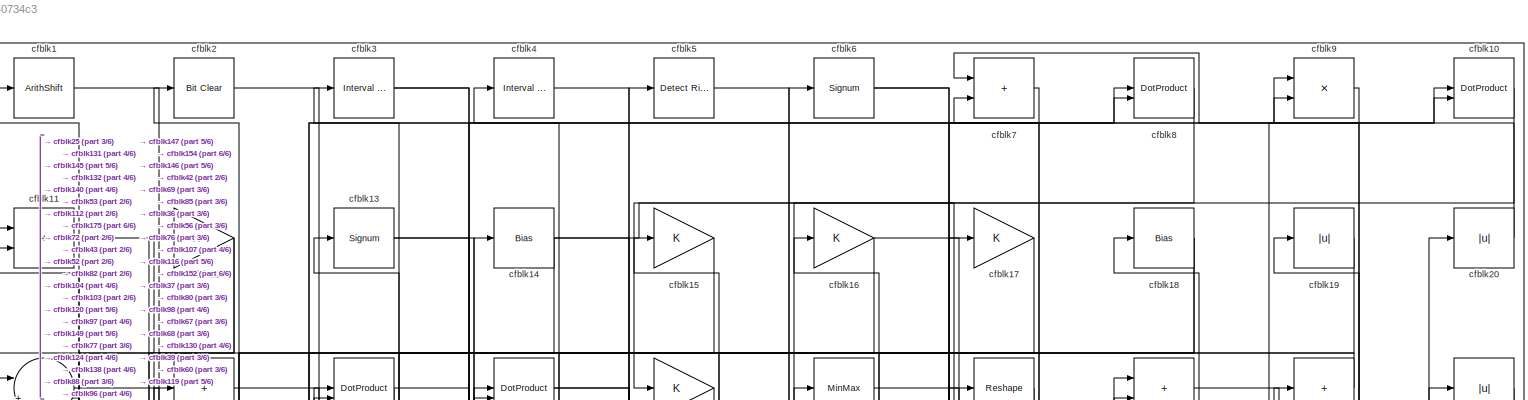
[diagram: root canvas - part 1/6, full width, top band]
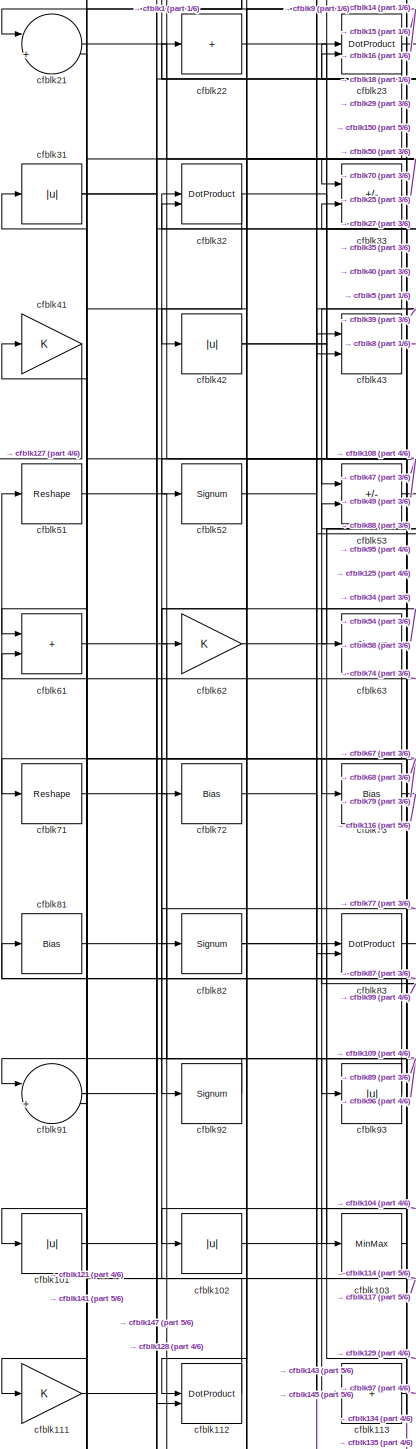
[diagram: root canvas - part 2/6, middle left region]
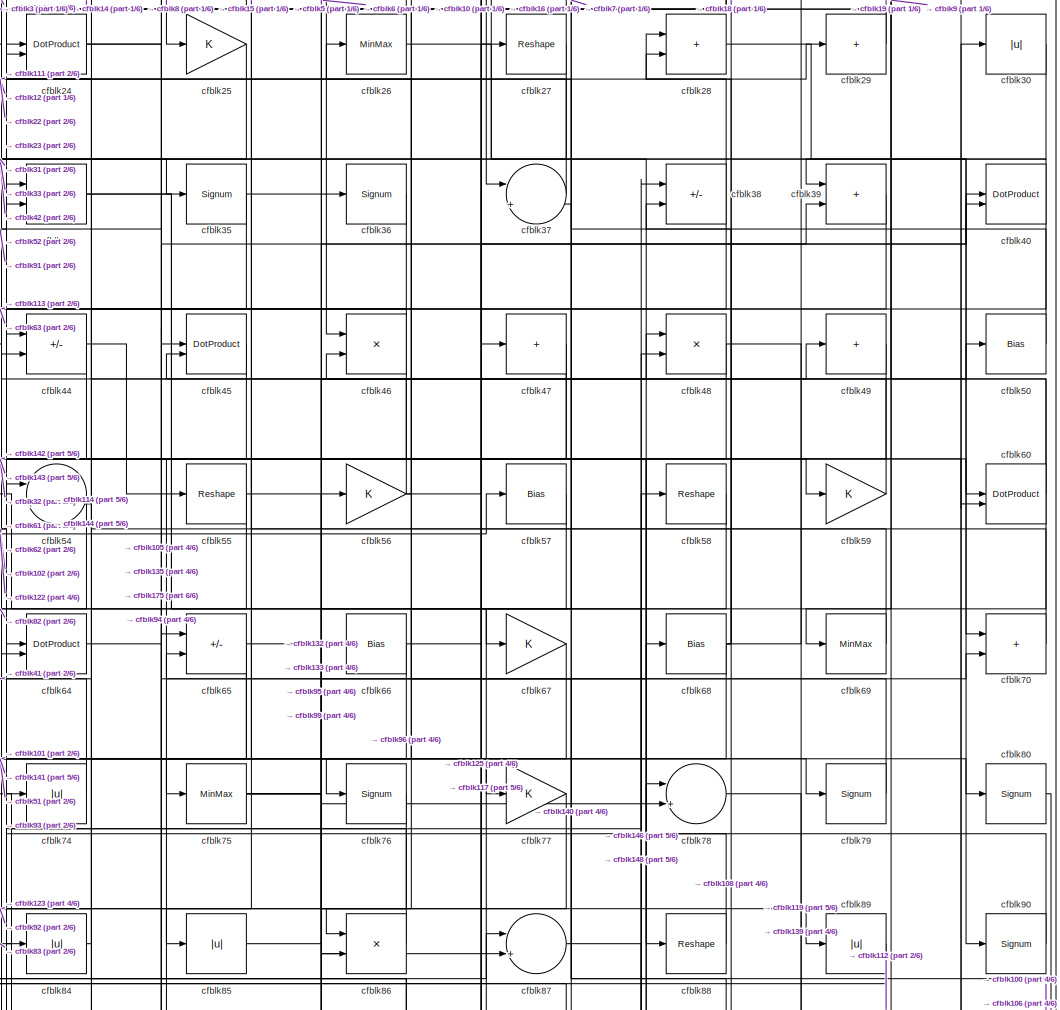
[diagram: root canvas - part 3/6, top center region]
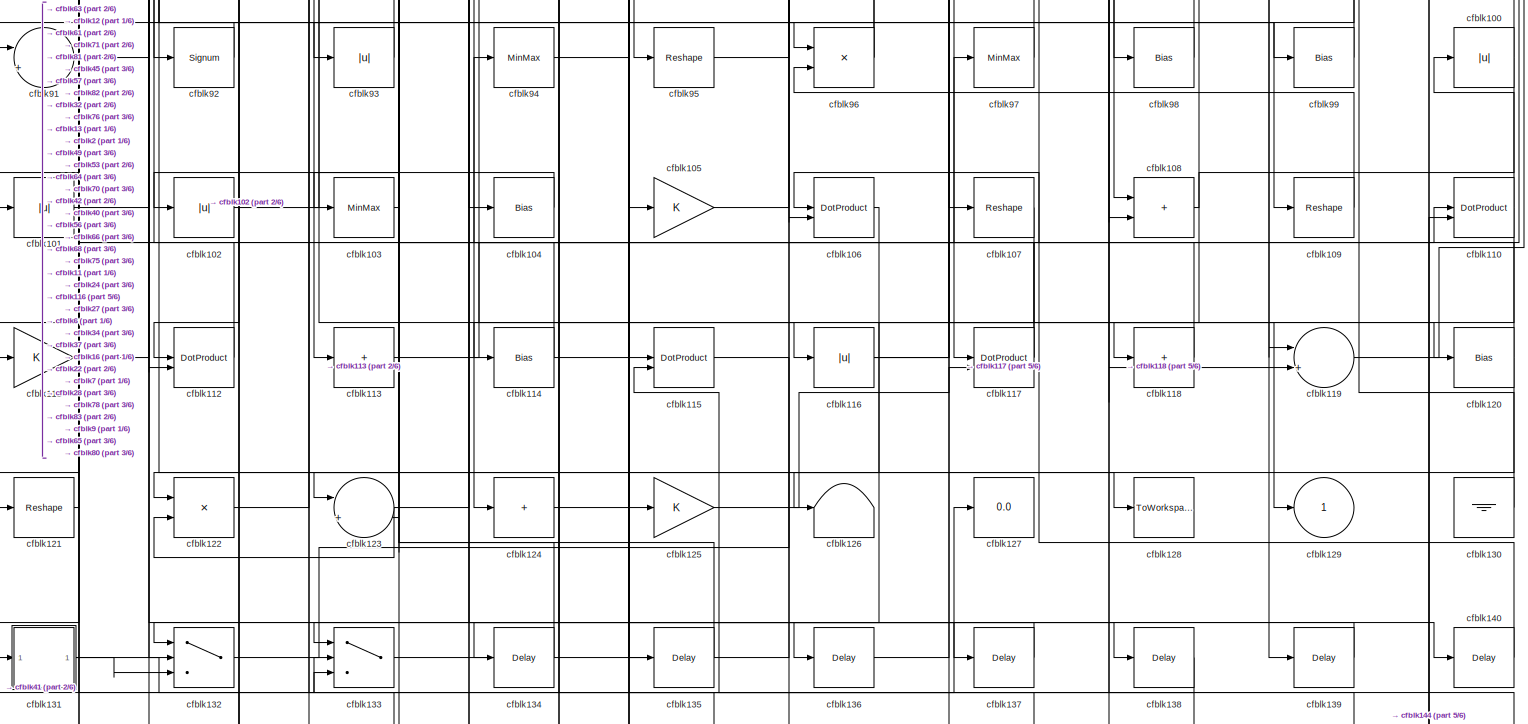
[diagram: root canvas - part 4/6, full width, middle band]
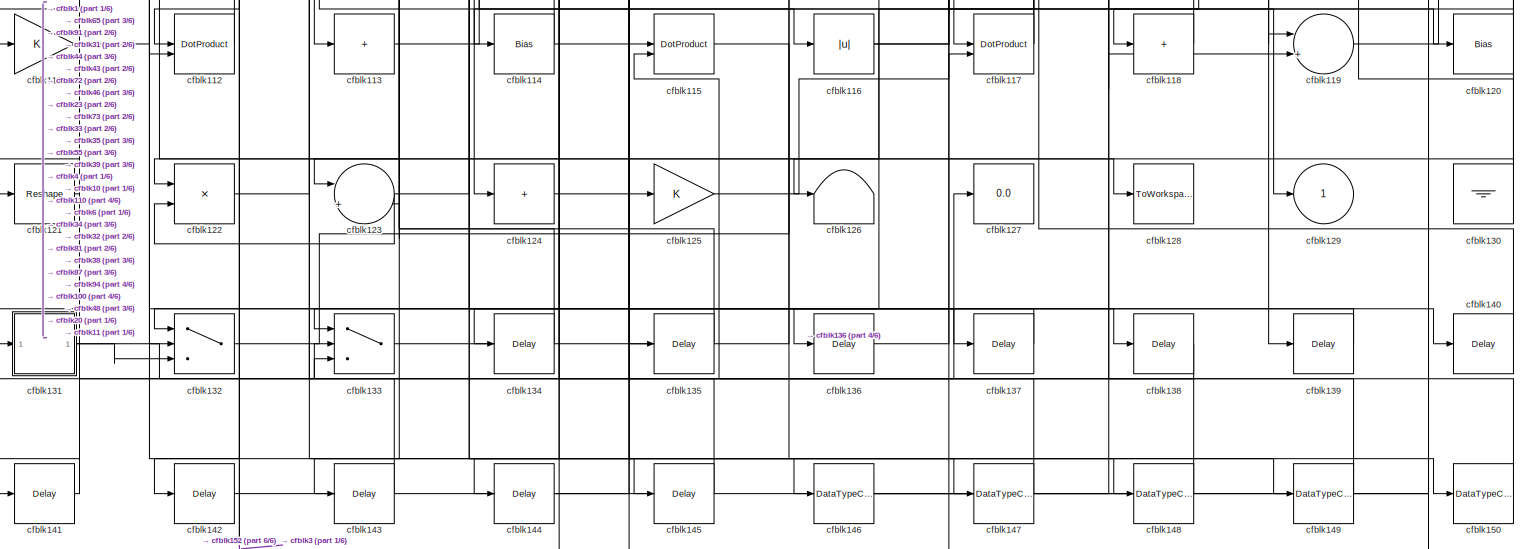
[diagram: root canvas - part 5/6, full width, bottom band]
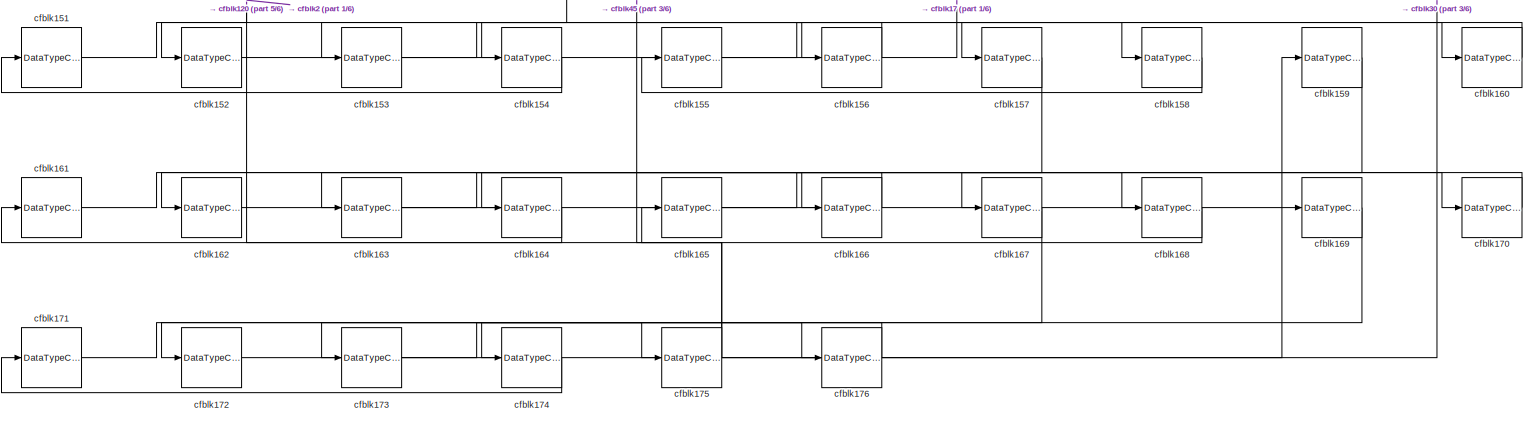
[diagram: root canvas - part 6/6, full width, bottom band]
MODEL slx_c6e8740734c3
KIND model
CONFIG AbsTol = auto
CONFIG EnableMultiTasking = off
CONFIG FixedStep = auto
CONFIG MaxStep = auto
CONFIG MinStep = auto
CONFIG RelTol = 1e-3
CONFIG SampleTimeConstraint = Unconstrained
CONFIG SolverName = VariableStepAuto
CONFIG StartTime = 0.0
CONFIG StopTime = 10.0
BLOCK [ArithShift] cfblk1
  BitShiftNumber = 8
  InputPortMap = u0
BLOCK [DotProduct] cfblk10
  OutDataTypeStr = Inherit: Inherit via internal rule
BLOCK [Abs] cfblk100
  SaturateOnIntegerOverflow = off
BLOCK [Abs] cfblk101
  SaturateOnIntegerOverflow = off
BLOCK [Abs] cfblk102
  SaturateOnIntegerOverflow = off
BLOCK [MinMax] cfblk103
BLOCK [Bias] cfblk104
  Bias = 0.0
  SaturateOnIntegerOverflow = off
BLOCK [Gain] cfblk105
BLOCK [DotProduct] cfblk106
  OutDataTypeStr = Inherit: Inherit via internal rule
BLOCK [Reshape] cfblk107
BLOCK [Sum] cfblk108
  IconShape = rectangular
BLOCK [Reshape] cfblk109
BLOCK [Sum] cfblk11
  IconShape = rectangular
BLOCK [DotProduct] cfblk110
  OutDataTypeStr = Inherit: Inherit via internal rule
BLOCK [Gain] cfblk111
BLOCK [DotProduct] cfblk112
  OutDataTypeStr = Inherit: Inherit via internal rule
BLOCK [Sum] cfblk113
  IconShape = rectangular
  Inputs = +
BLOCK [Bias] cfblk114
  Bias = 0.0
  SaturateOnIntegerOverflow = off
BLOCK [DotProduct] cfblk115
  OutDataTypeStr = Inherit: Inherit via internal rule
BLOCK [Abs] cfblk116
  SaturateOnIntegerOverflow = off
BLOCK [DotProduct] cfblk117
  OutDataTypeStr = Inherit: Inherit via internal rule
BLOCK [Sum] cfblk118
  IconShape = rectangular
  Inputs = +
BLOCK [Sum] cfblk119
  Inputs = |++
BLOCK [Gain] cfblk12
BLOCK [Bias] cfblk120
  Bias = 0.0
  SaturateOnIntegerOverflow = off
BLOCK [Reshape] cfblk121
BLOCK [Product] cfblk122
  Inputs = */
  RndMeth = Zero
  SaturateOnIntegerOverflow = on
BLOCK [Sum] cfblk123
  Inputs = |++
BLOCK [Sum] cfblk124
  IconShape = rectangular
  Inputs = +
BLOCK [Gain] cfblk125
BLOCK [Terminator] cfblk126
BLOCK [Display] cfblk127
  Decimation = 1
BLOCK [ToWorkspace] cfblk128
  MaxDataPoints = inf
  SampleTime = -1
  SaveFormat = Timeseries
  VariableName = simout
BLOCK [Outport] cfblk129
  VectorParamsAs1DForOutWhenUnconnected = off
BLOCK [Signum] cfblk13
BLOCK [Ground] cfblk130
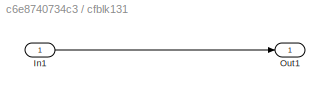
BLOCK [SubSystem] cfblk131
  LibrarySourceBlock = hdlsllib/Ports &\nSubsystems/Subsystem
BLOCK [Inport] cfblk131/In1
BLOCK [Outport] cfblk131/Out1
BLOCK [Switch] cfblk132
  InputSameDT = off
  SaturateOnIntegerOverflow = off
BLOCK [Switch] cfblk133
  InputSameDT = off
  SaturateOnIntegerOverflow = off
BLOCK [Delay] cfblk134
  InputPortMap = u0
  SampleTime = 1
BLOCK [Delay] cfblk135
  InputPortMap = u0
  SampleTime = 1
BLOCK [Delay] cfblk136
  InputPortMap = u0
  SampleTime = 1
BLOCK [Delay] cfblk137
  InputPortMap = u0
  SampleTime = 1
BLOCK [Delay] cfblk138
  InputPortMap = u0
  SampleTime = 1
BLOCK [Delay] cfblk139
  InputPortMap = u0
  SampleTime = 1
BLOCK [Bias] cfblk14
  Bias = 0.0
  SaturateOnIntegerOverflow = off
BLOCK [Delay] cfblk140
  InputPortMap = u0
  SampleTime = 1
BLOCK [Delay] cfblk141
  InputPortMap = u0
  SampleTime = 1
BLOCK [Delay] cfblk142
  InputPortMap = u0
  SampleTime = 1
BLOCK [Delay] cfblk143
  InputPortMap = u0
  SampleTime = 1
BLOCK [Delay] cfblk144
  InputPortMap = u0
  SampleTime = 1
BLOCK [Delay] cfblk145
  InputPortMap = u0
  SampleTime = 1
BLOCK [DataTypeConversion] cfblk146
  RndMeth = Floor
  SaturateOnIntegerOverflow = off
BLOCK [DataTypeConversion] cfblk147
  OutDataTypeStr = uint8
  RndMeth = Floor
  SaturateOnIntegerOverflow = off
BLOCK [DataTypeConversion] cfblk148
  OutDataTypeStr = uint8
  RndMeth = Floor
  SaturateOnIntegerOverflow = off
BLOCK [DataTypeConversion] cfblk149
  OutDataTypeStr = uint8
  RndMeth = Floor
  SaturateOnIntegerOverflow = off
BLOCK [Gain] cfblk15
BLOCK [DataTypeConversion] cfblk150
  OutDataTypeStr = uint8
  RndMeth = Floor
  SaturateOnIntegerOverflow = off
BLOCK [DataTypeConversion] cfblk151
  RndMeth = Floor
  SaturateOnIntegerOverflow = off
BLOCK [DataTypeConversion] cfblk152
  OutDataTypeStr = uint8
  RndMeth = Floor
  SaturateOnIntegerOverflow = off
BLOCK [DataTypeConversion] cfblk153
  RndMeth = Floor
  SaturateOnIntegerOverflow = off
BLOCK [DataTypeConversion] cfblk154
  OutDataTypeStr = uint8
  RndMeth = Floor
  SaturateOnIntegerOverflow = off
BLOCK [DataTypeConversion] cfblk155
  RndMeth = Floor
  SaturateOnIntegerOverflow = off
BLOCK [DataTypeConversion] cfblk156
  OutDataTypeStr = uint8
  RndMeth = Floor
  SaturateOnIntegerOverflow = off
BLOCK [DataTypeConversion] cfblk157
  RndMeth = Floor
  SaturateOnIntegerOverflow = off
BLOCK [DataTypeConversion] cfblk158
  OutDataTypeStr = uint8
  RndMeth = Floor
  SaturateOnIntegerOverflow = off
BLOCK [DataTypeConversion] cfblk159
  RndMeth = Floor
  SaturateOnIntegerOverflow = off
BLOCK [Gain] cfblk16
BLOCK [DataTypeConversion] cfblk160
  OutDataTypeStr = uint8
  RndMeth = Floor
  SaturateOnIntegerOverflow = off
BLOCK [DataTypeConversion] cfblk161
  RndMeth = Floor
  SaturateOnIntegerOverflow = off
BLOCK [DataTypeConversion] cfblk162
  OutDataTypeStr = uint8
  RndMeth = Floor
  SaturateOnIntegerOverflow = off
BLOCK [DataTypeConversion] cfblk163
  RndMeth = Floor
  SaturateOnIntegerOverflow = off
BLOCK [DataTypeConversion] cfblk164
  OutDataTypeStr = uint8
  RndMeth = Floor
  SaturateOnIntegerOverflow = off
BLOCK [DataTypeConversion] cfblk165
  RndMeth = Floor
  SaturateOnIntegerOverflow = off
BLOCK [DataTypeConversion] cfblk166
  OutDataTypeStr = uint8
  RndMeth = Floor
  SaturateOnIntegerOverflow = off
BLOCK [DataTypeConversion] cfblk167
  RndMeth = Floor
  SaturateOnIntegerOverflow = off
BLOCK [DataTypeConversion] cfblk168
  OutDataTypeStr = uint8
  RndMeth = Floor
  SaturateOnIntegerOverflow = off
BLOCK [DataTypeConversion] cfblk169
  RndMeth = Floor
  SaturateOnIntegerOverflow = off
BLOCK [Gain] cfblk17
BLOCK [DataTypeConversion] cfblk170
  OutDataTypeStr = uint8
  RndMeth = Floor
  SaturateOnIntegerOverflow = off
BLOCK [DataTypeConversion] cfblk171
  RndMeth = Floor
  SaturateOnIntegerOverflow = off
BLOCK [DataTypeConversion] cfblk172
  OutDataTypeStr = uint8
  RndMeth = Floor
  SaturateOnIntegerOverflow = off
BLOCK [DataTypeConversion] cfblk173
  RndMeth = Floor
  SaturateOnIntegerOverflow = off
BLOCK [DataTypeConversion] cfblk174
  OutDataTypeStr = uint8
  RndMeth = Floor
  SaturateOnIntegerOverflow = off
BLOCK [DataTypeConversion] cfblk175
  RndMeth = Floor
  SaturateOnIntegerOverflow = off
BLOCK [DataTypeConversion] cfblk176
  OutDataTypeStr = uint8
  RndMeth = Floor
  SaturateOnIntegerOverflow = off
BLOCK [Bias] cfblk18
  Bias = 0.0
  SaturateOnIntegerOverflow = off
BLOCK [Abs] cfblk19
  SaturateOnIntegerOverflow = off
BLOCK [Reference] cfblk2  REF=simulink/Logic and Bit
Operations/Bit Clear
  LibrarySourceBlock = hdlsllib/Logic and Bit\nOperations/Bit Clear
  SourceBlock = simulink/Logic and Bit\nOperations/Bit Clear
  SourceType = Bit Clear
BLOCK [Abs] cfblk20
  SaturateOnIntegerOverflow = off
BLOCK [Sum] cfblk21
  Inputs = |++
BLOCK [Sum] cfblk22
  IconShape = rectangular
  Inputs = +
BLOCK [DotProduct] cfblk23
  OutDataTypeStr = Inherit: Inherit via internal rule
BLOCK [DotProduct] cfblk24
  OutDataTypeStr = Inherit: Inherit via internal rule
BLOCK [Gain] cfblk25
BLOCK [MinMax] cfblk26
BLOCK [Reshape] cfblk27
BLOCK [Sum] cfblk28
  IconShape = rectangular
BLOCK [Sum] cfblk29
  IconShape = rectangular
  Inputs = +
BLOCK [Reference] cfblk3  REF=hdlsllib/Logic and Bit
Operations/Interval Test
  SourceBlock = hdlsllib/Logic and Bit\nOperations/Interval Test
  SourceType = Interval Test
BLOCK [Abs] cfblk30
  SaturateOnIntegerOverflow = off
BLOCK [Abs] cfblk31
  SaturateOnIntegerOverflow = off
BLOCK [DotProduct] cfblk32
  OutDataTypeStr = Inherit: Inherit via internal rule
BLOCK [Sum] cfblk33
  IconShape = rectangular
  Inputs = +-
BLOCK [Product] cfblk34
  Inputs = */
  RndMeth = Zero
  SaturateOnIntegerOverflow = on
BLOCK [Signum] cfblk35
BLOCK [Signum] cfblk36
BLOCK [Sum] cfblk37
  Inputs = |++
BLOCK [Sum] cfblk38
  IconShape = rectangular
  Inputs = +-
BLOCK [Sum] cfblk39
  IconShape = rectangular
BLOCK [Reference] cfblk4  REF=hdlsllib/Logic and Bit
Operations/Interval Test
  SourceBlock = hdlsllib/Logic and Bit\nOperations/Interval Test
  SourceType = Interval Test
BLOCK [DotProduct] cfblk40
  OutDataTypeStr = Inherit: Inherit via internal rule
BLOCK [Gain] cfblk41
BLOCK [Abs] cfblk42
  SaturateOnIntegerOverflow = off
BLOCK [Product] cfblk43
  Inputs = */
  RndMeth = Zero
  SaturateOnIntegerOverflow = on
BLOCK [Sum] cfblk44
  IconShape = rectangular
  Inputs = +-
BLOCK [DotProduct] cfblk45
  OutDataTypeStr = Inherit: Inherit via internal rule
BLOCK [Product] cfblk46
  Inputs = */
  RndMeth = Zero
  SaturateOnIntegerOverflow = on
BLOCK [Sum] cfblk47
  IconShape = rectangular
  Inputs = +
BLOCK [Product] cfblk48
  Inputs = */
  RndMeth = Zero
  SaturateOnIntegerOverflow = on
BLOCK [Sum] cfblk49
  IconShape = rectangular
  Inputs = +
BLOCK [Reference] cfblk5  REF=hdlsllib/Logic and Bit
Operations/Detect Rise
Nonnegative
  SourceBlock = hdlsllib/Logic and Bit\nOperations/Detect Rise\nNonnegative
  SourceType = Detect Rise Nonnegative
BLOCK [Bias] cfblk50
  Bias = 0.0
  SaturateOnIntegerOverflow = off
BLOCK [Reshape] cfblk51
BLOCK [Signum] cfblk52
BLOCK [Sum] cfblk53
  IconShape = rectangular
  Inputs = +-
BLOCK [Sum] cfblk54
  Inputs = |++
BLOCK [Reshape] cfblk55
BLOCK [Gain] cfblk56
BLOCK [Bias] cfblk57
  Bias = 0.0
  SaturateOnIntegerOverflow = off
BLOCK [Reshape] cfblk58
BLOCK [Gain] cfblk59
BLOCK [Signum] cfblk6
BLOCK [DotProduct] cfblk60
  OutDataTypeStr = Inherit: Inherit via internal rule
BLOCK [Sum] cfblk61
  IconShape = rectangular
BLOCK [Gain] cfblk62
BLOCK [Signum] cfblk63
BLOCK [DotProduct] cfblk64
  OutDataTypeStr = Inherit: Inherit via internal rule
BLOCK [Sum] cfblk65
  IconShape = rectangular
  Inputs = +-
BLOCK [Bias] cfblk66
  Bias = 0.0
  SaturateOnIntegerOverflow = off
BLOCK [Gain] cfblk67
BLOCK [Bias] cfblk68
  Bias = 0.0
  SaturateOnIntegerOverflow = off
BLOCK [MinMax] cfblk69
BLOCK [Sum] cfblk7
  IconShape = rectangular
BLOCK [Sum] cfblk70
  IconShape = rectangular
BLOCK [Reshape] cfblk71
BLOCK [Bias] cfblk72
  Bias = 0.0
  SaturateOnIntegerOverflow = off
BLOCK [Bias] cfblk73
  Bias = 0.0
  SaturateOnIntegerOverflow = off
BLOCK [Abs] cfblk74
  SaturateOnIntegerOverflow = off
BLOCK [MinMax] cfblk75
BLOCK [Signum] cfblk76
BLOCK [Gain] cfblk77
BLOCK [Sum] cfblk78
  Inputs = |++
BLOCK [Signum] cfblk79
BLOCK [DotProduct] cfblk8
  OutDataTypeStr = Inherit: Inherit via internal rule
BLOCK [Signum] cfblk80
BLOCK [Bias] cfblk81
  Bias = 0.0
  SaturateOnIntegerOverflow = off
BLOCK [Signum] cfblk82
BLOCK [DotProduct] cfblk83
  OutDataTypeStr = Inherit: Inherit via internal rule
BLOCK [Abs] cfblk84
  SaturateOnIntegerOverflow = off
BLOCK [Abs] cfblk85
  SaturateOnIntegerOverflow = off
BLOCK [Product] cfblk86
  Inputs = */
  RndMeth = Zero
  SaturateOnIntegerOverflow = on
BLOCK [Sum] cfblk87
  Inputs = |++
BLOCK [Reshape] cfblk88
BLOCK [Abs] cfblk89
  SaturateOnIntegerOverflow = off
BLOCK [Product] cfblk9
  Inputs = */
  RndMeth = Zero
  SaturateOnIntegerOverflow = on
BLOCK [Signum] cfblk90
BLOCK [Sum] cfblk91
  Inputs = |++
BLOCK [Signum] cfblk92
BLOCK [Abs] cfblk93
  SaturateOnIntegerOverflow = off
BLOCK [MinMax] cfblk94
BLOCK [Reshape] cfblk95
BLOCK [Product] cfblk96
  Inputs = */
  RndMeth = Zero
  SaturateOnIntegerOverflow = on
BLOCK [MinMax] cfblk97
BLOCK [Bias] cfblk98
  Bias = 0.0
  SaturateOnIntegerOverflow = off
BLOCK [Bias] cfblk99
  Bias = 0.0
  SaturateOnIntegerOverflow = off
NET cfblk100:1 -> cfblk118:1, cfblk65:2
LINE cfblk101:1 -> cfblk87:1
LINE cfblk102:1 -> cfblk34:1
LINE cfblk103:1 -> cfblk23:2
LINE cfblk104:1 -> cfblk102:1
LINE cfblk105:1 -> cfblk40:1
LINE cfblk106:1 -> cfblk136:1
LINE cfblk107:1 -> cfblk134:1
LINE cfblk108:1 -> cfblk28:1
LINE cfblk109:1 -> cfblk96:2
LINE cfblk10:1 -> cfblk36:1
NET cfblk110:1 -> cfblk100:1, cfblk126:1
LINE cfblk111:1 -> cfblk29:1
LINE cfblk112:1 -> cfblk31:1
LINE cfblk113:1 -> cfblk97:1
NET cfblk114:1 -> cfblk33:2, cfblk39:2
LINE cfblk115:1 -> cfblk148:1
NET cfblk116:1 -> cfblk10:1, cfblk110:1
NET cfblk117:1 -> cfblk32:1, cfblk81:1
LINE cfblk118:1 -> cfblk94:1
LINE cfblk119:1 -> cfblk11:1
LINE cfblk11:1 -> cfblk140:1
NET cfblk120:1 -> cfblk152:1, cfblk3:1
LINE cfblk121:1 -> cfblk61:2
LINE cfblk122:1 -> cfblk57:1
NET cfblk123:1 -> cfblk122:2, cfblk49:1
LINE cfblk124:1 -> cfblk137:1
LINE cfblk125:1 -> cfblk27:1
NET cfblk12:1 -> cfblk131:1, cfblk132:2
LINE cfblk130:1 -> cfblk9:2
LINE cfblk131/In1:1 -> cfblk131/Out1:1
NET cfblk131:1 -> cfblk132:3, cfblk133:2
LINE cfblk132:1 -> cfblk56:1
LINE cfblk133:1 -> cfblk66:1
LINE cfblk134:1 -> cfblk53:2
LINE cfblk135:1 -> cfblk32:2
LINE cfblk136:1 -> cfblk117:2
LINE cfblk137:1 -> cfblk133:1
LINE cfblk138:1 -> cfblk133:3
LINE cfblk139:1 -> cfblk132:1
NET cfblk13:1 -> cfblk124:1, cfblk138:1
LINE cfblk140:1 -> cfblk37:2
LINE cfblk141:1 -> cfblk91:2
LINE cfblk142:1 -> cfblk65:1
LINE cfblk143:1 -> cfblk43:1
LINE cfblk144:1 -> cfblk110:2
LINE cfblk145:1 -> cfblk1:1
NET cfblk146:1 -> cfblk20:1, cfblk48:2
LINE cfblk147:1 -> cfblk4:1
LINE cfblk148:1 -> cfblk38:1
LINE cfblk149:1 -> cfblk115:1
NET cfblk14:1 -> cfblk37:1, cfblk72:1, cfblk80:1
LINE cfblk150:1 -> cfblk115:2
LINE cfblk151:1 -> cfblk156:1
LINE cfblk152:1 -> cfblk17:1
LINE cfblk153:1 -> cfblk158:1
LINE cfblk154:1 -> cfblk151:1
LINE cfblk155:1 -> cfblk160:1
LINE cfblk156:1 -> cfblk153:1
LINE cfblk157:1 -> cfblk162:1
LINE cfblk158:1 -> cfblk155:1
LINE cfblk159:1 -> cfblk164:1
LINE cfblk15:1 -> cfblk112:1
LINE cfblk160:1 -> cfblk157:1
LINE cfblk161:1 -> cfblk166:1
LINE cfblk162:1 -> cfblk159:1
LINE cfblk163:1 -> cfblk168:1
LINE cfblk164:1 -> cfblk161:1
LINE cfblk165:1 -> cfblk170:1
LINE cfblk166:1 -> cfblk163:1
LINE cfblk167:1 -> cfblk172:1
LINE cfblk168:1 -> cfblk165:1
LINE cfblk169:1 -> cfblk174:1
NET cfblk16:1 -> cfblk43:2, cfblk98:1
LINE cfblk170:1 -> cfblk167:1
LINE cfblk171:1 -> cfblk176:1
LINE cfblk172:1 -> cfblk169:1
LINE cfblk173:1 -> cfblk175:1
LINE cfblk174:1 -> cfblk171:1
NET cfblk175:1 -> cfblk2:1, cfblk30:1, cfblk45:1
LINE cfblk176:1 -> cfblk173:1
LINE cfblk17:1 -> cfblk154:1
NET cfblk18:1 -> cfblk103:1, cfblk85:1
LINE cfblk19:1 -> cfblk76:1
LINE cfblk1:1 -> cfblk53:1
LINE cfblk20:1 -> cfblk7:1
LINE cfblk21:1 -> cfblk47:1
LINE cfblk22:1 -> cfblk108:1
NET cfblk23:1 -> cfblk150:1, cfblk71:1
NET cfblk24:1 -> cfblk105:1, cfblk59:1
LINE cfblk25:1 -> cfblk52:1
LINE cfblk26:1 -> cfblk70:1
LINE cfblk27:1 -> cfblk42:1
LINE cfblk28:1 -> cfblk90:1
LINE cfblk29:1 -> cfblk21:1
LINE cfblk2:1 -> cfblk104:1
LINE cfblk30:1 -> cfblk69:1
NET cfblk31:1 -> cfblk147:1, cfblk35:1
NET cfblk32:1 -> cfblk111:1, cfblk88:1
LINE cfblk33:1 -> cfblk83:2
NET cfblk34:1 -> cfblk108:2, cfblk117:1
NET cfblk35:1 -> cfblk144:1, cfblk46:1
LINE cfblk36:1 -> cfblk54:2
LINE cfblk37:1 -> cfblk12:1
NET cfblk38:1 -> cfblk28:2, cfblk44:2
LINE cfblk39:1 -> cfblk113:1
NET cfblk3:1 -> cfblk149:1, cfblk77:1
NET cfblk40:1 -> cfblk33:1, cfblk63:1
LINE cfblk41:1 -> cfblk127:1
NET cfblk42:1 -> cfblk5:1, cfblk95:1
NET cfblk43:1 -> cfblk73:1, cfblk8:1
NET cfblk44:1 -> cfblk142:1, cfblk55:1
LINE cfblk45:1 -> cfblk122:1
NET cfblk46:1 -> cfblk143:1, cfblk44:1
NET cfblk47:1 -> cfblk61:1, cfblk75:1
NET cfblk48:1 -> cfblk119:1, cfblk86:2
LINE cfblk49:1 -> cfblk62:1
LINE cfblk4:1 -> cfblk146:1
LINE cfblk50:1 -> cfblk23:1
LINE cfblk51:1 -> cfblk79:1
LINE cfblk52:1 -> cfblk9:1
LINE cfblk53:1 -> cfblk125:1
LINE cfblk54:1 -> cfblk64:2
NET cfblk55:1 -> cfblk114:1, cfblk87:2
NET cfblk56:1 -> cfblk16:1, cfblk45:2, cfblk60:1
LINE cfblk57:1 -> cfblk106:2
LINE cfblk58:1 -> cfblk82:1
LINE cfblk59:1 -> cfblk26:1
LINE cfblk5:1 -> cfblk60:2
NET cfblk60:1 -> cfblk19:1, cfblk24:1, cfblk86:1
LINE cfblk61:1 -> cfblk128:1
LINE cfblk62:1 -> cfblk54:1
LINE cfblk63:1 -> cfblk121:1
LINE cfblk64:1 -> cfblk135:1
NET cfblk65:1 -> cfblk141:1, cfblk84:1, cfblk89:1
NET cfblk66:1 -> cfblk123:2, cfblk40:2
LINE cfblk67:1 -> cfblk101:1
NET cfblk68:1 -> cfblk10:2, cfblk18:1, cfblk38:2, cfblk93:1
LINE cfblk69:1 -> cfblk15:1
NET cfblk6:1 -> cfblk107:1, cfblk120:1
LINE cfblk70:1 -> cfblk22:1
LINE cfblk71:1 -> cfblk109:1
LINE cfblk72:1 -> cfblk145:1
LINE cfblk73:1 -> cfblk116:1
LINE cfblk74:1 -> cfblk41:1
NET cfblk75:1 -> cfblk48:1, cfblk50:1, cfblk78:2, cfblk99:1
LINE cfblk76:1 -> cfblk123:1
LINE cfblk77:1 -> cfblk92:1
LINE cfblk78:1 -> cfblk139:1
LINE cfblk79:1 -> cfblk46:2
LINE cfblk7:1 -> cfblk67:1
LINE cfblk80:1 -> cfblk106:1
LINE cfblk81:1 -> cfblk96:1
NET cfblk82:1 -> cfblk129:1, cfblk8:2
LINE cfblk83:1 -> cfblk58:1
LINE cfblk84:1 -> cfblk64:1
LINE cfblk85:1 -> cfblk6:1
LINE cfblk86:1 -> cfblk74:1
LINE cfblk87:1 -> cfblk119:2
LINE cfblk88:1 -> cfblk14:1
LINE cfblk89:1 -> cfblk112:2
LINE cfblk8:1 -> cfblk25:1
LINE cfblk90:1 -> cfblk78:1
NET cfblk91:1 -> cfblk21:2, cfblk34:2
LINE cfblk92:1 -> cfblk91:1
LINE cfblk93:1 -> cfblk51:1
LINE cfblk94:1 -> cfblk70:2
LINE cfblk95:1 -> cfblk68:1
NET cfblk96:1 -> cfblk11:2, cfblk24:2
LINE cfblk97:1 -> cfblk13:1
LINE cfblk98:1 -> cfblk7:2
LINE cfblk99:1 -> cfblk83:1
LINE cfblk9:1 -> cfblk39:1
note: NET lines group one-source signal fan-out (src -> all destinations, sorted); 1:1 wires keep LINE
